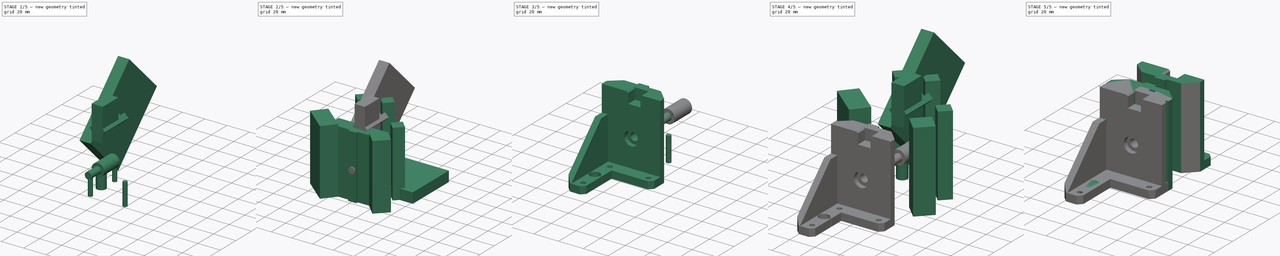
[diagram: build sequence overview — one tinted view per stage of 5, left to right]
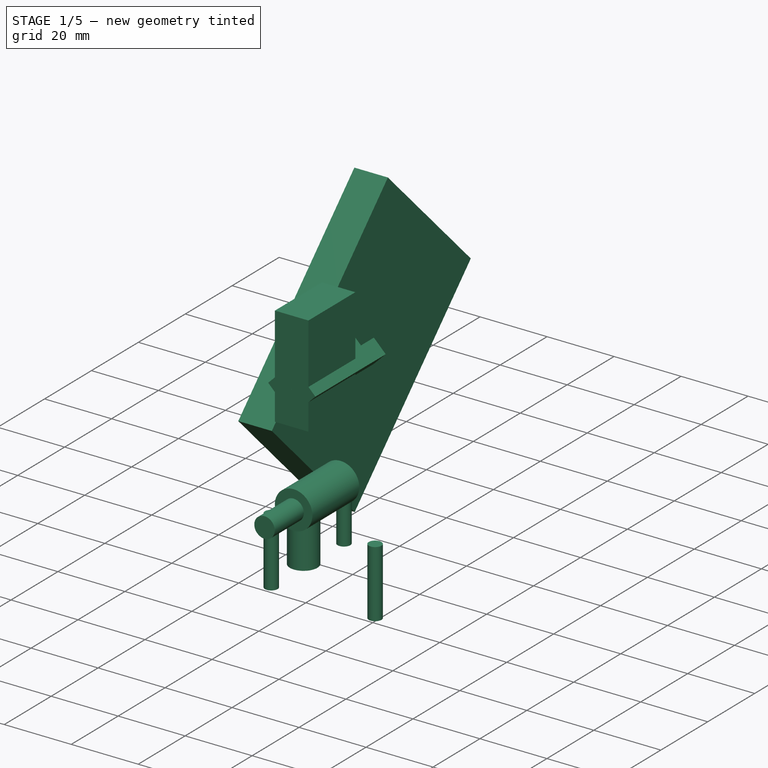
[diagram: stage 1 of 5 — iso view after this stage's code; geometry added in this stage tinted green]
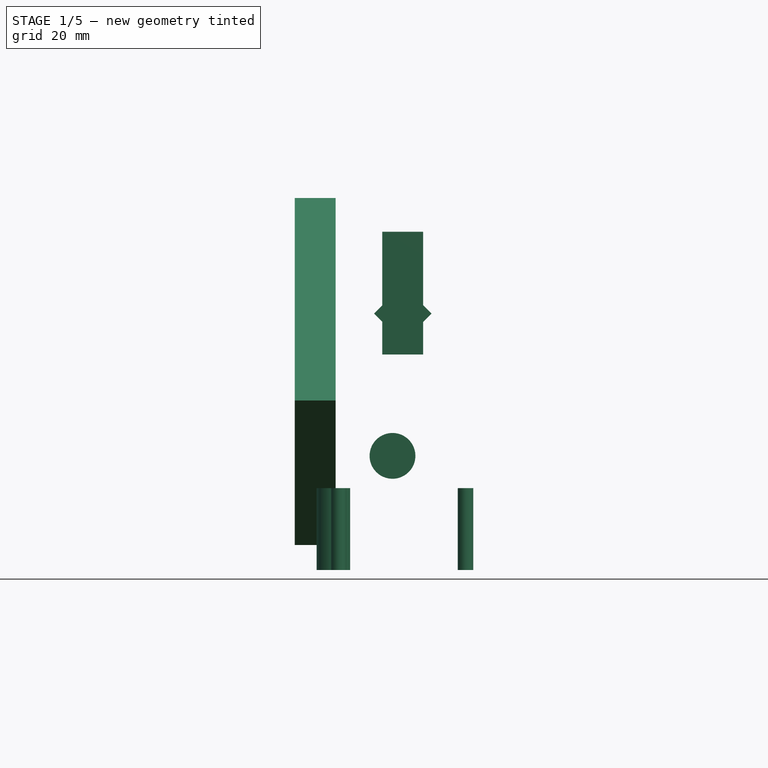
[diagram: stage 1 of 5 — front view after this stage's code; geometry added in this stage tinted green]
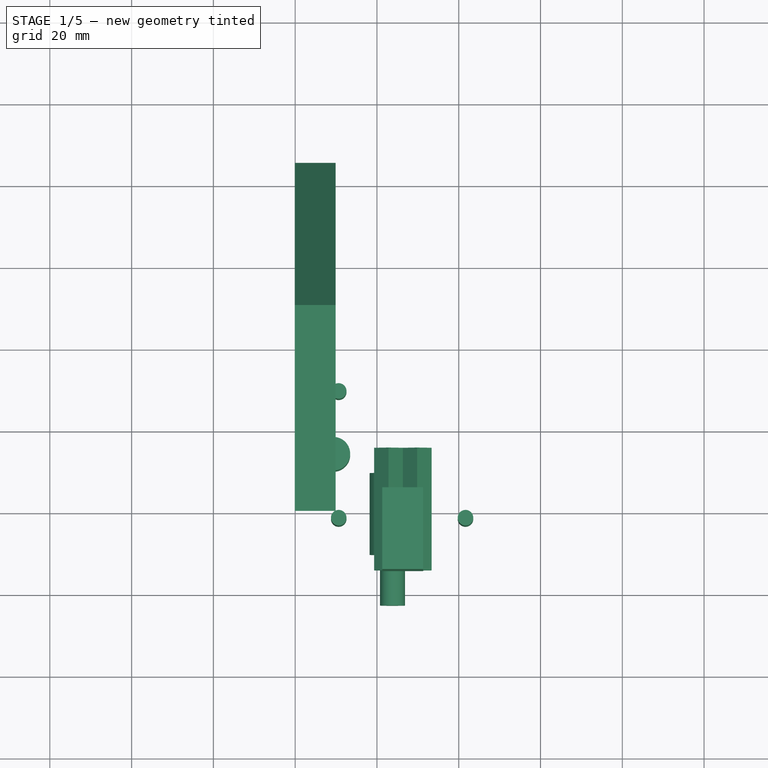
[diagram: stage 1 of 5 — top view after this stage's code; geometry added in this stage tinted green]
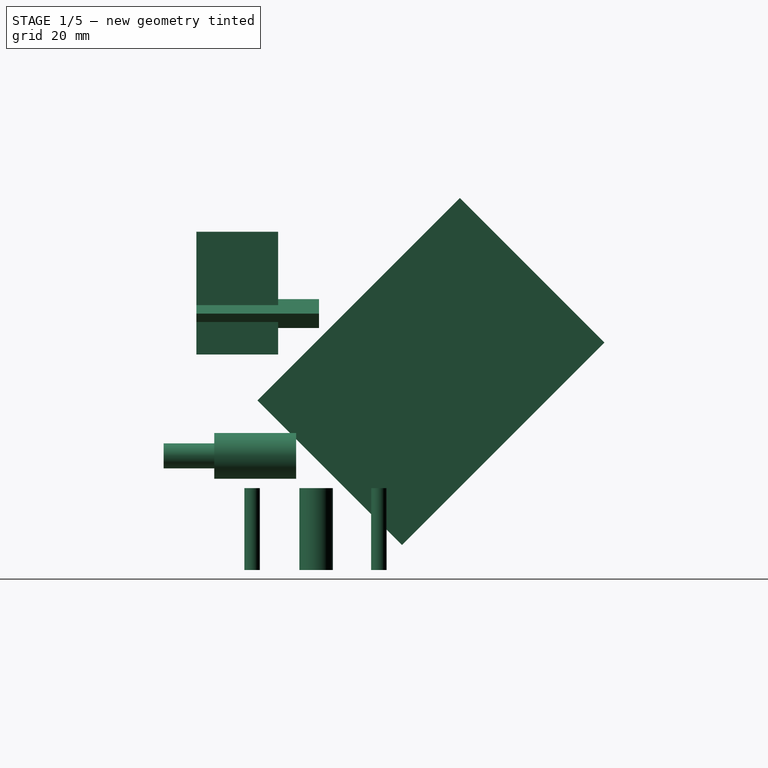
[diagram: stage 1 of 5 — right view after this stage's code; geometry added in this stage tinted green]
FCSTD DOCUMENT  (FreeCAD 0.19R)
Label: z-bottom
License: All rights reserved
LicenseURL: http://en.wikipedia.org/wiki/All_rights_reserved
objects: Part::Box×30, Part::Cylinder×12, Part::MultiFuse×8, Part::Fuse×3, Part::Cut×2, Part::Mirroring×2, PartDesign::FeatureBase×1, Sketcher::SketchObject×1, PartDesign::Pocket×1, PartDesign::Chamfer×1, PartDesign::Body×1
note: 64 computed .brp shape members not serialized (recipe doc carries the construction recipe); baked Part::Feature solids carry a one-line shape summary decoded from their .brp

FEATURE [Part::Box] cube011
  AttacherType = Attacher::AttachEngine3D
  Height = 50
  Length = 10
  Placement = pos=(-0.1,55.3,6) rot=(1,0,0;0.785398rad)
  Width = 70
FEATURE [Part::Box] cube012
  AttacherType = Attacher::AttachEngine3D
  Height = 30
  Length = 10
  Placement = pos=(21.3,5,52.6) rot=(0,0,1;0rad)
  Width = 20
FEATURE [Part::Box] cube013
  AttacherType = Attacher::AttachEngine3D
  Height = 5
  Length = 5
  Placement = pos=(26.3,5,62.6) rot=(0,1,0;0.785398rad)
  Width = 30
FEATURE [Part::Box] cube014
  AttacherType = Attacher::AttachEngine3D
  Height = 5
  Length = 5
  Placement = pos=(19.3,5,62.6) rot=(0,1,0;0.785398rad)
  Width = 30
FEATURE [Part::Cylinder] cylinder
  Angle = 360
  AttacherType = Attacher::AttachEngine3D
  Height = 20
  Placement = pos=(9.35,34.3,-0.1) rot=(0,0,1;0rad)
  Radius = 4.1
FEATURE [Part::Cylinder] cylinder001
  Angle = 360
  AttacherType = Attacher::AttachEngine3D
  Height = 20
  Radius = 1.9
FEATURE [Part::Cylinder] cylinder002
  Angle = 360
  AttacherType = Attacher::AttachEngine3D
  Height = 20
  Placement = pos=(31,0,0) rot=(0,0,1;0rad)
  Radius = 1.9
FEATURE [Part::Cylinder] cylinder003
  Angle = 360
  AttacherType = Attacher::AttachEngine3D
  Height = 20
  Placement = pos=(0,31,0) rot=(0,0,1;0rad)
  Radius = 1.9
FEATURE [Part::MultiFuse] Matrix_Union
  Placement = pos=(10.65,18.65,-0.1) rot=(0,0,1;0rad)
  Shapes = -> [cylinder001,cylinder002,cylinder003]
FEATURE [Part::Cylinder] cylinder004
  Angle = 360
  AttacherType = Attacher::AttachEngine3D
  Height = 20
  Placement = pos=(23.8,9.4,27.8) rot=(-1,0,0;1.5708rad)
  Radius = 5.6
FEATURE [Part::Cylinder] cylinder005
  Angle = 360
  AttacherType = Attacher::AttachEngine3D
  Height = 20
  Placement = pos=(23.8,-3,27.8) rot=(-1,0,0;1.5708rad)
  Radius = 3.05
FEATURE [Part::MultiFuse] Group002
  Shapes = -> [cylinder,Matrix_Union,cylinder004,cylinder005]
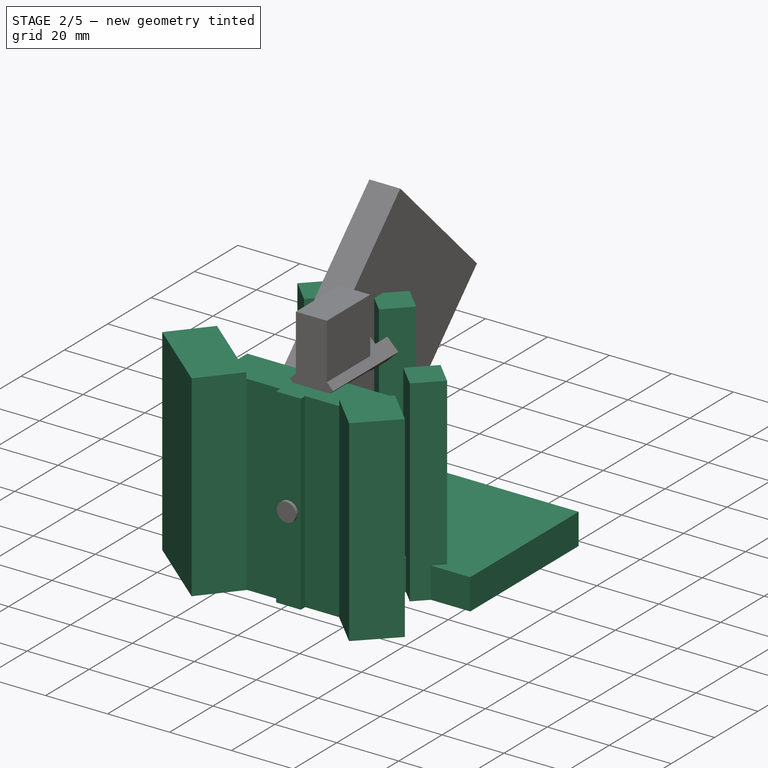
[diagram: stage 2 of 5 — iso view after this stage's code; geometry added in this stage tinted green]
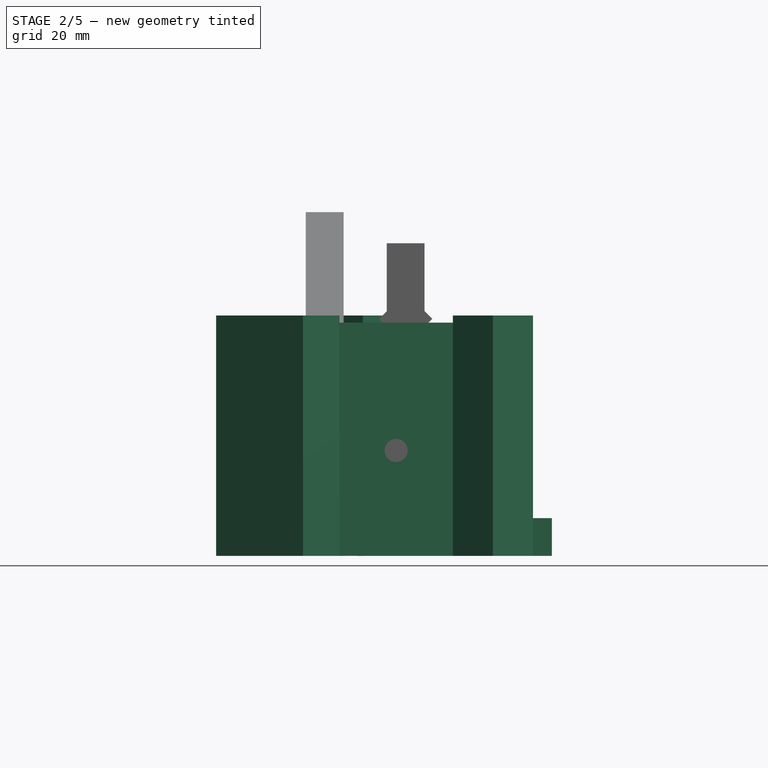
[diagram: stage 2 of 5 — front view after this stage's code; geometry added in this stage tinted green]
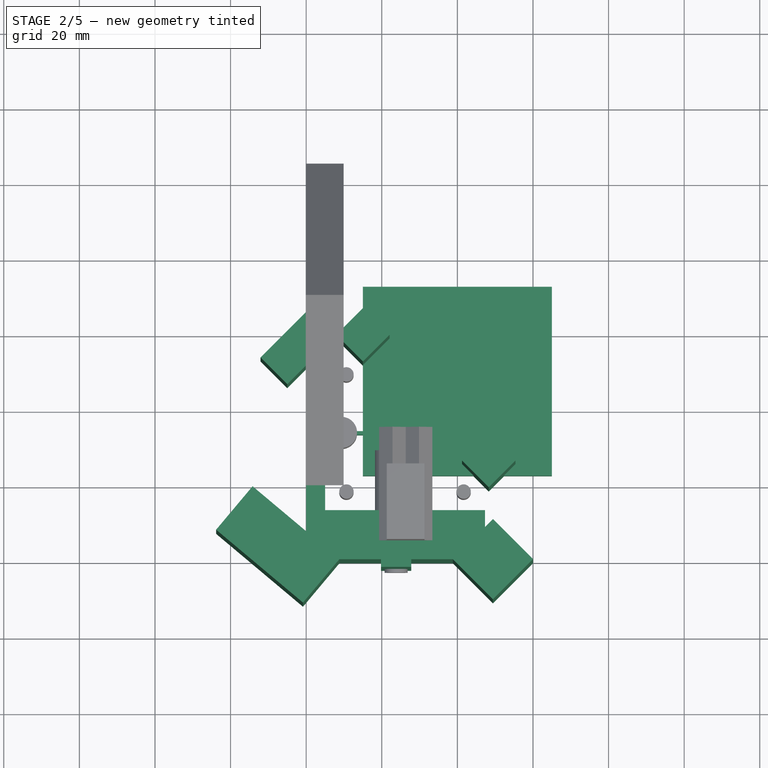
[diagram: stage 2 of 5 — top view after this stage's code; geometry added in this stage tinted green]
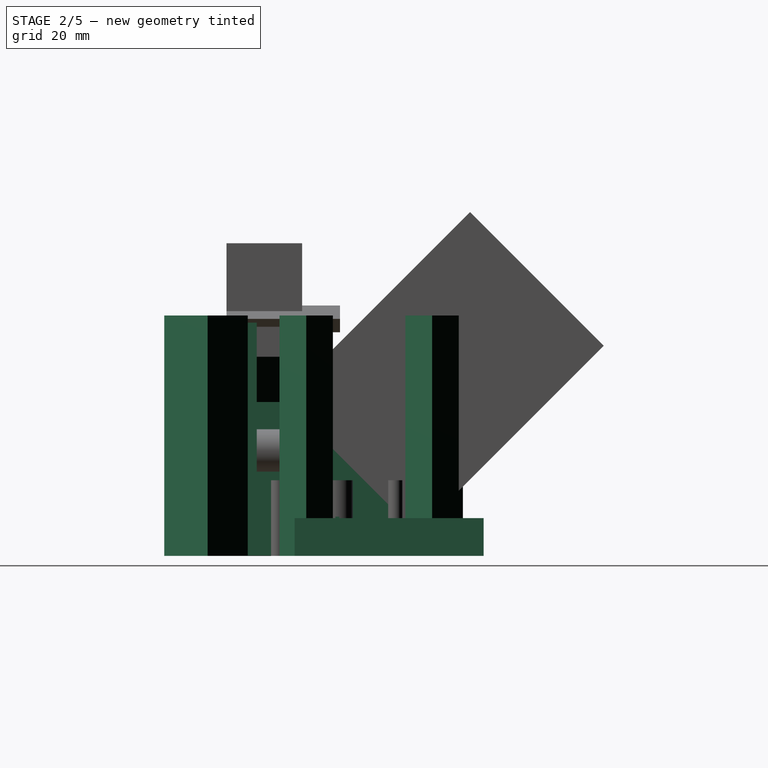
[diagram: stage 2 of 5 — right view after this stage's code; geometry added in this stage tinted green]
FEATURE [Part::Box] cube001
  AttacherType = Attacher::AttachEngine3D
  Height = 61.6
  Length = 47.3
  Width = 13
FEATURE [Part::Box] cube002
  AttacherType = Attacher::AttachEngine3D
  Height = 40.6
  Length = 5
  Width = 55.3
FEATURE [Part::Box] cube003
  AttacherType = Attacher::AttachEngine3D
  Height = 61.6
  Length = 8
  Placement = pos=(19.8,-2,0) rot=(0,0,1;0rad)
  Width = 3
FEATURE [Part::Box] cube004
  AttacherType = Attacher::AttachEngine3D
  Height = 10
  Length = 50
  Placement = pos=(15,23,-0.1) rot=(0,0,1;0rad)
  Width = 50
FEATURE [Part::Box] cube005
  AttacherType = Attacher::AttachEngine3D
  Height = 10
  Length = 10
  Placement = pos=(7.5,33.8,0.3) rot=(0,0,1;0rad)
  Width = 1
FEATURE [Part::Box] cube006
  AttacherType = Attacher::AttachEngine3D
  Height = 63.6
  Length = 30
  Placement = pos=(8.8,0,-0.1) rot=(0,0,1;2.44346rad)
  Width = 15
FEATURE [Part::Box] cube007
  AttacherType = Attacher::AttachEngine3D
  Height = 63.6
  Length = 15
  Placement = pos=(38.8,0,-0.1) rot=(0,0,-1;0.785398rad)
  Width = 15
FEATURE [Part::Box] cube008
  AttacherType = Attacher::AttachEngine3D
  Height = 63.6
  Length = 10
  Placement = pos=(48.3,19,-0.1) rot=(0,0,1;0.785398rad)
  Width = 10
FEATURE [Part::Box] cube009
  AttacherType = Attacher::AttachEngine3D
  Height = 63.6
  Length = 10
  Placement = pos=(15,52.3,-0.1) rot=(0,0,1;0.785398rad)
  Width = 10
FEATURE [Part::Box] cube010
  AttacherType = Attacher::AttachEngine3D
  Height = 63.6
  Length = 20
  Placement = pos=(-5,46.3,-0.1) rot=(0,0,1;0.785398rad)
  Width = 10
FEATURE [Part::MultiFuse] Group001
  Shapes = -> [cube004,cube005,cube006,cube007,cube008,cube009,cube010,cube011,cube012,cube013,cube014]
FEATURE [Part::Fuse] union
  Base = -> Group001
  Tool = -> Group002
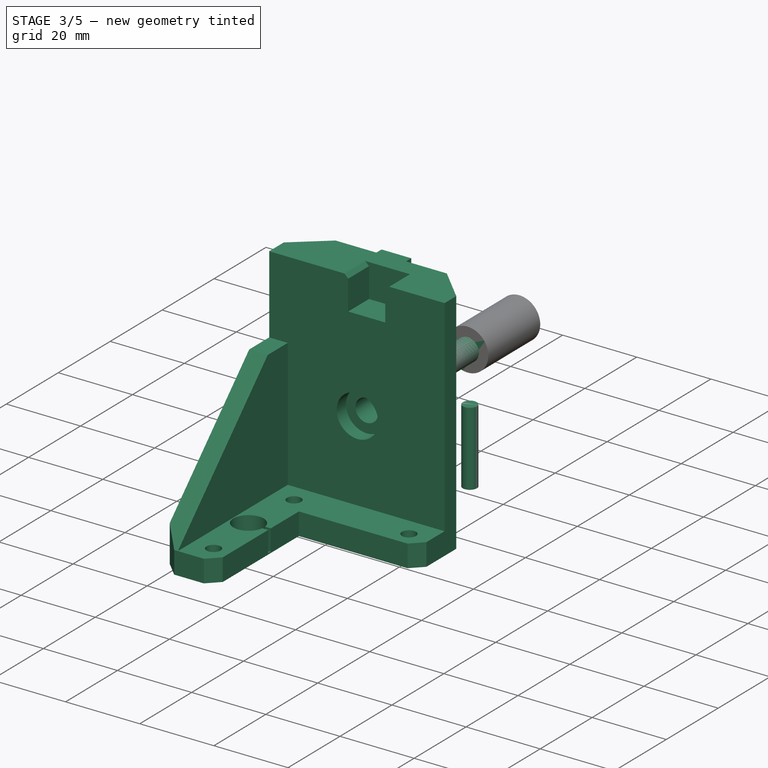
[diagram: stage 3 of 5 — iso view after this stage's code; geometry added in this stage tinted green]
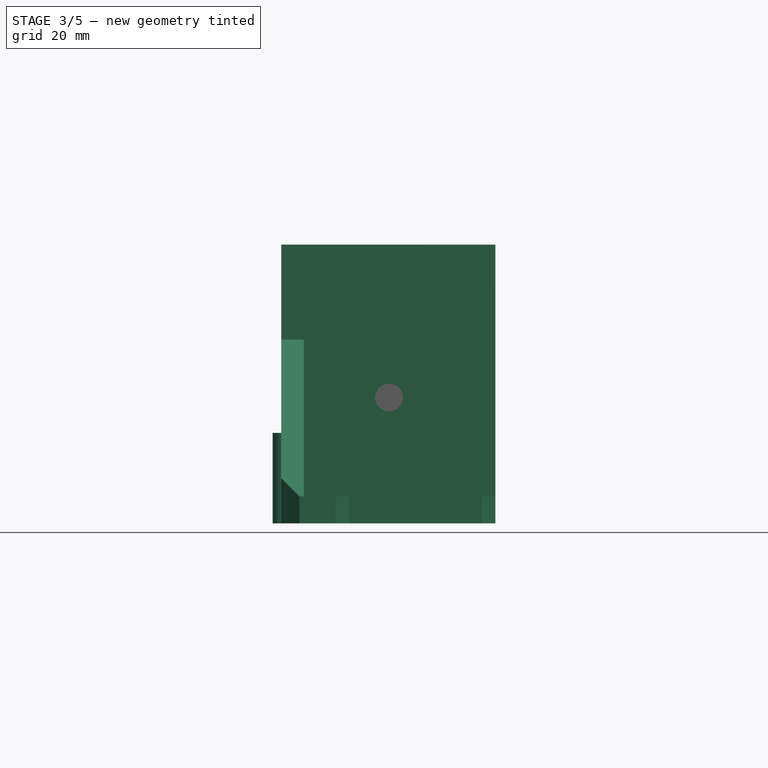
[diagram: stage 3 of 5 — front view after this stage's code; geometry added in this stage tinted green]
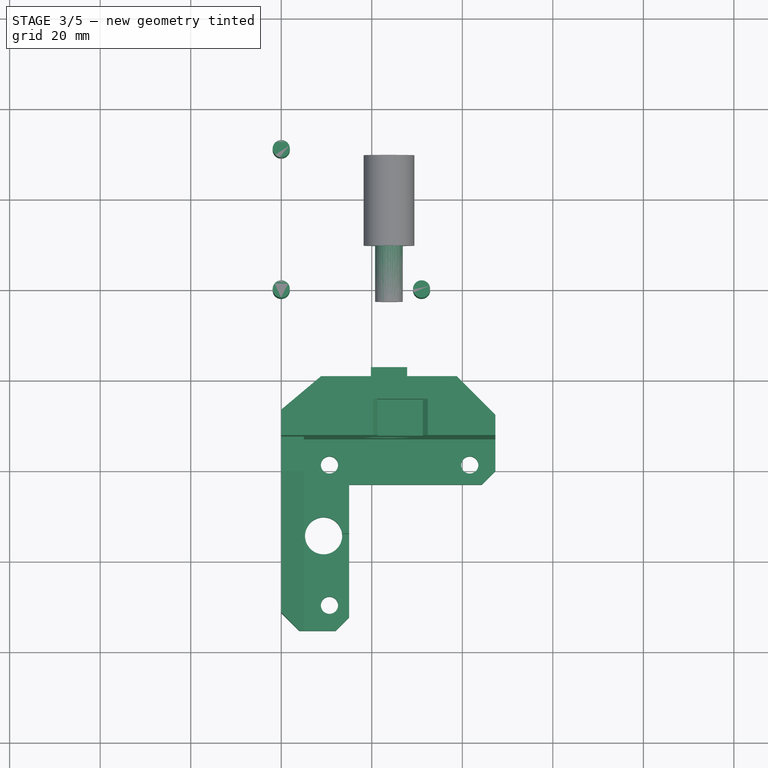
[diagram: stage 3 of 5 — top view after this stage's code; geometry added in this stage tinted green]
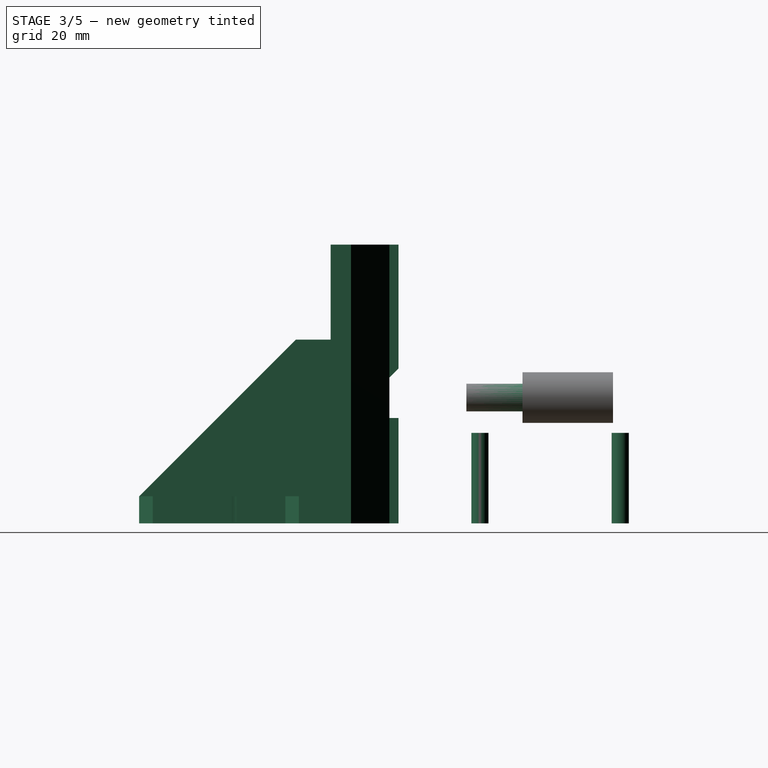
[diagram: stage 3 of 5 — right view after this stage's code; geometry added in this stage tinted green]
FEATURE [Part::Box] cube
  AttacherType = Attacher::AttachEngine3D
  Height = 6
  Length = 47.3
  Width = 55.3
FEATURE [Part::MultiFuse] Group
  Shapes = -> [cube,cube001,cube002,cube003]
FEATURE [Part::Cut] difference
  Base = -> Group
  Refine = true
  Tool = -> union
FEATURE [Part::Cylinder] cylinder007
  Angle = 360
  AttacherType = Attacher::AttachEngine3D
  Height = 20
  Radius = 1.9
FEATURE [Part::Cylinder] cylinder008
  Angle = 360
  AttacherType = Attacher::AttachEngine3D
  Height = 20
  Placement = pos=(31,0,0) rot=(0,0,1;0rad)
  Radius = 1.9
FEATURE [Part::Cylinder] cylinder009
  Angle = 360
  AttacherType = Attacher::AttachEngine3D
  Height = 20
  Placement = pos=(0,31,0) rot=(0,0,1;0rad)
  Radius = 1.9
FEATURE [Part::Cylinder] cylinder010
  Angle = 360
  AttacherType = Attacher::AttachEngine3D
  Height = 20
  Placement = pos=(23.8,9.4,27.8) rot=(-1,0,0;1.5708rad)
  Radius = 5.6
FEATURE [Part::Cylinder] cylinder011
  Angle = 360
  AttacherType = Attacher::AttachEngine3D
  Height = 20
  Placement = pos=(23.8,-3,27.8) rot=(-1,0,0;1.5708rad)
  Radius = 3.05
FEATURE [PartDesign::FeatureBase] BaseFeature
  BaseFeature = -> difference
FEATURE [Sketcher::SketchObject] Sketch
  ExternalGeometry = -> [BaseFeature]
  MapMode = 5
  Placement = pos=(0,-2,0) rot=(1,0,0;1.5708rad)
  Support = -> [BaseFeature]
  sketch-geometry (5):
    g0: LineSegment [constr] StartX=19.8 StartY=27.8 StartZ=0 EndX=27.8 EndY=27.8 EndZ=0
    g1: LineSegment StartX=19.8 StartY=32.3 StartZ=0 EndX=27.8 EndY=32.3 EndZ=0
    g2: LineSegment StartX=27.8 StartY=32.3 StartZ=0 EndX=27.8 EndY=23.3 EndZ=0
    g3: LineSegment StartX=27.8 StartY=23.3 StartZ=0 EndX=19.8 EndY=23.3 EndZ=0
    g4: LineSegment StartX=19.8 StartY=23.3 StartZ=0 EndX=19.8 EndY=32.3 EndZ=0
  constraints (15):
    c: PointOnObject(g0,g-5)
    c: PointOnObject(g0,g-4)
    c: Horizontal(g0)
    c: PointOnObject(g-3,g0)
    c: Coincident(g1,g2)
    c: Coincident(g2,g3)
    c: Coincident(g3,g4)
    c: Coincident(g4,g1)
    c: Horizontal(g1)
    c: Horizontal(g3)
    c: Vertical(g4)
    c: PointOnObject(g1,g-5)
    c: PointOnObject(g2,g-4)
    c: Symmetric(g1,g2,g0)
    c: DistanceY(g2,g2) = 9
FEATURE [PartDesign::Pocket] Pocket
  BaseFeature = -> BaseFeature
  Length = 2
  Length2 = 100
  Profile = -> Sketch
  Type = 0
FEATURE [PartDesign::Chamfer] Chamfer
  Angle = 45
  Base = -> Pocket [Edge99]
  BaseFeature = -> Pocket
  ChamferType = 0
  FlipDirection = false
  Size = 1.9
  Size2 = 1
  SupportTransform = false
FEATURE [PartDesign::Body] Body
  BaseFeature = -> difference
  Group = -> [BaseFeature,Sketch,Pocket,Chamfer]
  Origin = -> Origin
  Tip = -> Chamfer
FEATURE [Part::Mirroring] Part__Mirroring  label="Body (Mirror #2)"
  Base = (0,0,0)
  Normal = (0,1,0)
  Placement = pos=(0,-20,0) rot=(0,0,1;0rad)
  Source = -> Body
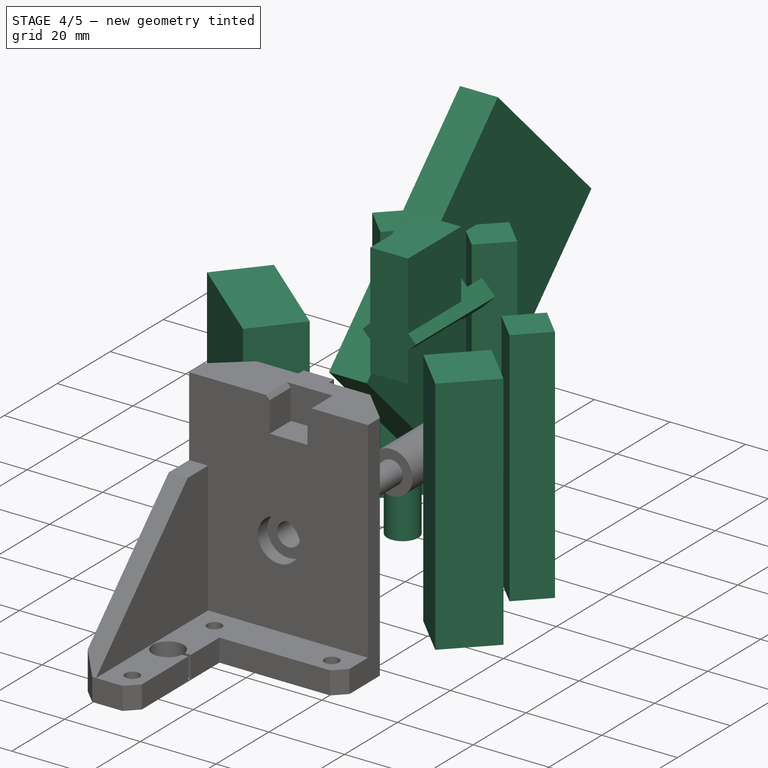
[diagram: stage 4 of 5 — iso view after this stage's code; geometry added in this stage tinted green]
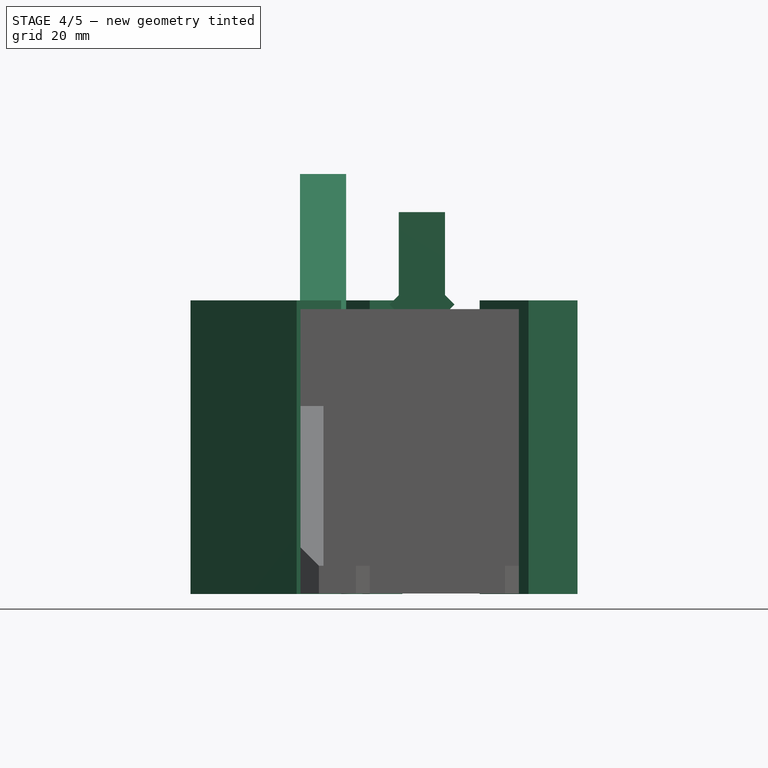
[diagram: stage 4 of 5 — front view after this stage's code; geometry added in this stage tinted green]
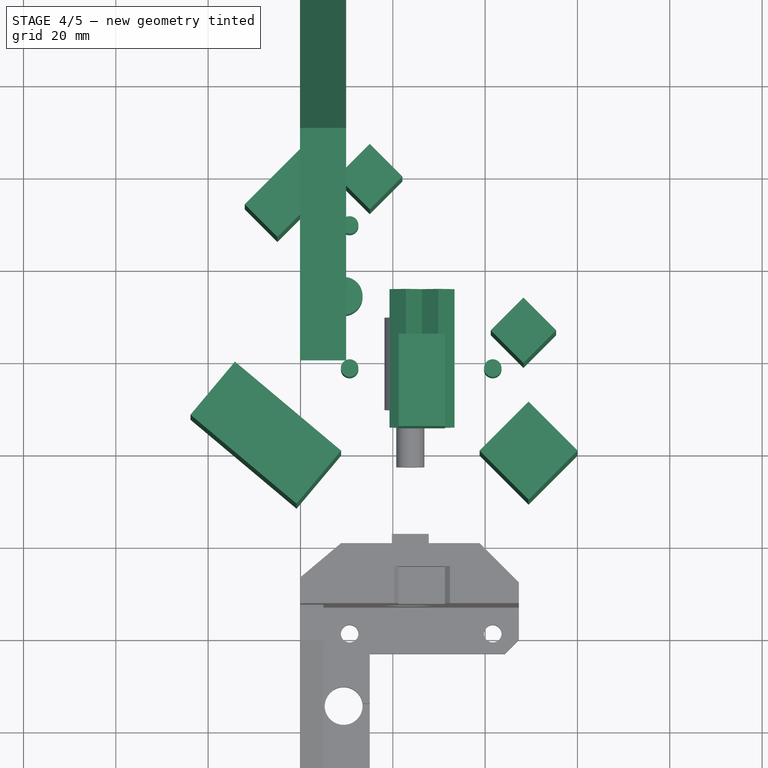
[diagram: stage 4 of 5 — top view after this stage's code; geometry added in this stage tinted green]
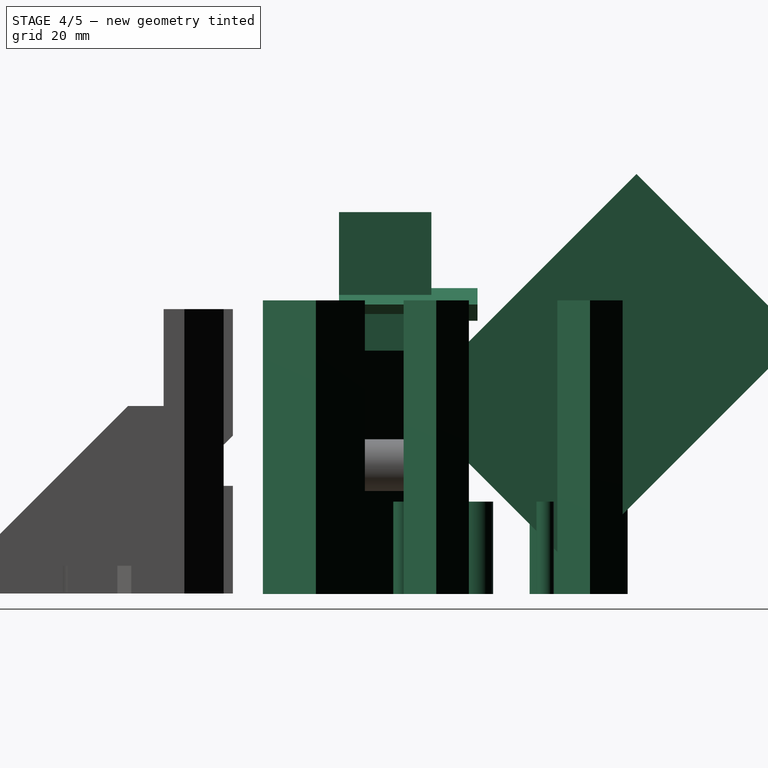
[diagram: stage 4 of 5 — right view after this stage's code; geometry added in this stage tinted green]
FEATURE [Part::Box] cube021
  AttacherType = Attacher::AttachEngine3D
  Height = 63.6
  Length = 30
  Placement = pos=(8.8,0,-0.1) rot=(0,0,1;2.44346rad)
  Width = 15
FEATURE [Part::Box] cube022
  AttacherType = Attacher::AttachEngine3D
  Height = 63.6
  Length = 15
  Placement = pos=(38.8,0,-0.1) rot=(0,0,-1;0.785398rad)
  Width = 15
FEATURE [Part::Box] cube023
  AttacherType = Attacher::AttachEngine3D
  Height = 63.6
  Length = 10
  Placement = pos=(48.3,19,-0.1) rot=(0,0,1;0.785398rad)
  Width = 10
FEATURE [Part::Box] cube024
  AttacherType = Attacher::AttachEngine3D
  Height = 63.6
  Length = 10
  Placement = pos=(15,52.3,-0.1) rot=(0,0,1;0.785398rad)
  Width = 10
FEATURE [Part::Box] cube025
  AttacherType = Attacher::AttachEngine3D
  Height = 63.6
  Length = 20
  Placement = pos=(-5,46.3,-0.1) rot=(0,0,1;0.785398rad)
  Width = 10
FEATURE [Part::Box] cube026
  AttacherType = Attacher::AttachEngine3D
  Height = 50
  Length = 10
  Placement = pos=(-0.1,55.3,6) rot=(1,0,0;0.785398rad)
  Width = 70
FEATURE [Part::Box] cube027
  AttacherType = Attacher::AttachEngine3D
  Height = 30
  Length = 10
  Placement = pos=(21.3,5,52.6) rot=(0,0,1;0rad)
  Width = 20
FEATURE [Part::Box] cube028
  AttacherType = Attacher::AttachEngine3D
  Height = 5
  Length = 5
  Placement = pos=(26.3,5,62.6) rot=(0,1,0;0.785398rad)
  Width = 30
FEATURE [Part::Box] cube029
  AttacherType = Attacher::AttachEngine3D
  Height = 5
  Length = 5
  Placement = pos=(19.3,5,62.6) rot=(0,1,0;0.785398rad)
  Width = 30
FEATURE [Part::Cylinder] cylinder006
  Angle = 360
  AttacherType = Attacher::AttachEngine3D
  Height = 20
  Placement = pos=(9.35,34.3,-0.1) rot=(0,0,1;0rad)
  Radius = 4.1
FEATURE [Part::MultiFuse] Matrix_Union001
  Placement = pos=(10.65,18.65,-0.1) rot=(0,0,1;0rad)
  Shapes = -> [cylinder007,cylinder008,cylinder009]
FEATURE [Part::MultiFuse] Group005
  Shapes = -> [cylinder006,Matrix_Union001,cylinder010,cylinder011]
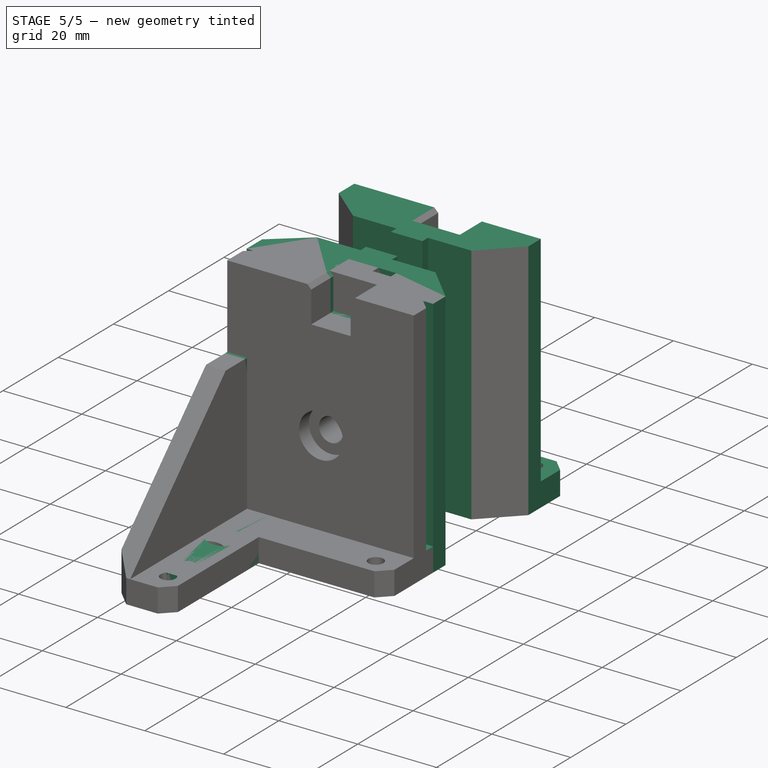
[diagram: stage 5 of 5 — iso view after this stage's code; geometry added in this stage tinted green]
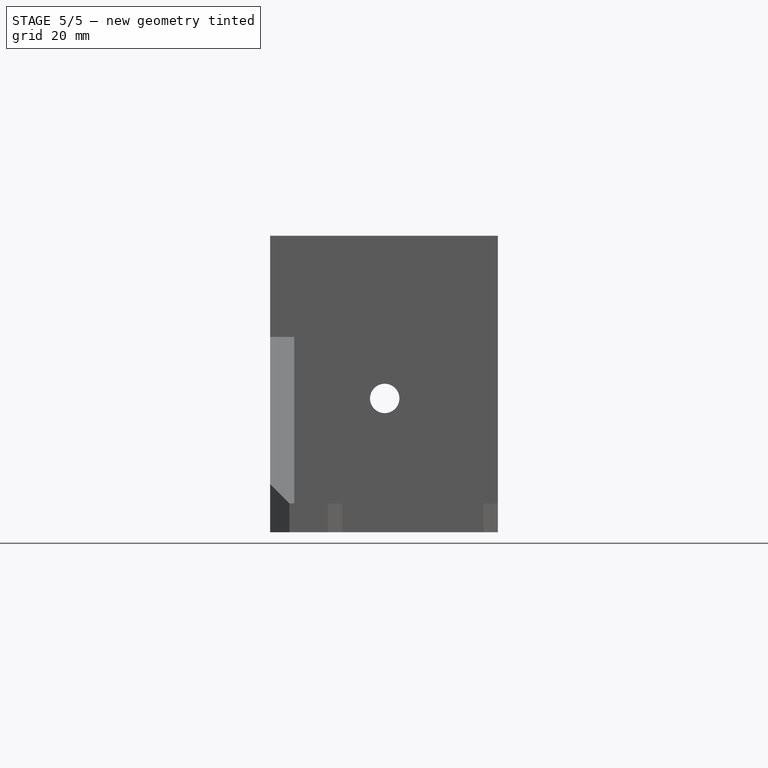
[diagram: stage 5 of 5 — front view after this stage's code; geometry added in this stage tinted green]
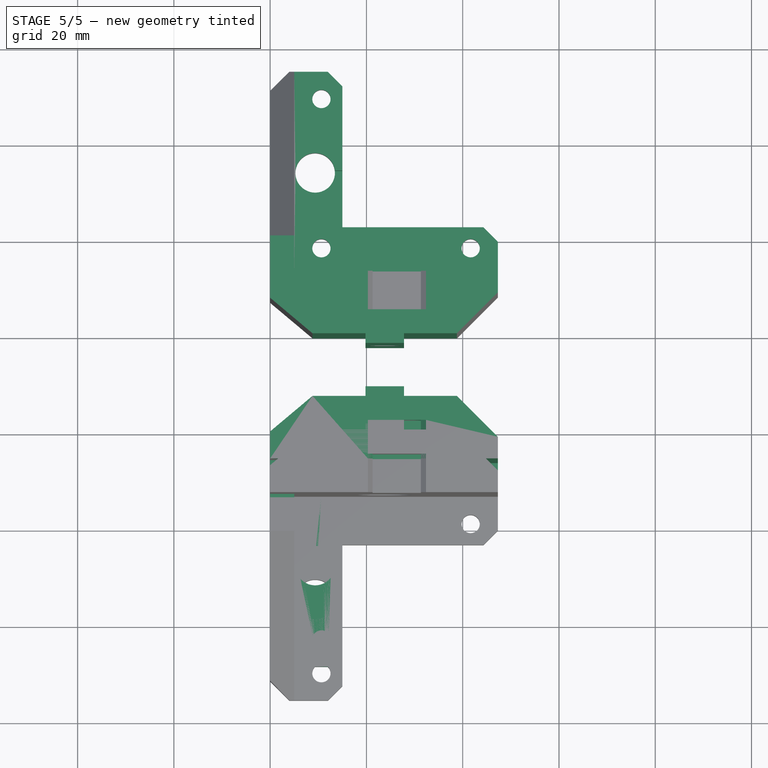
[diagram: stage 5 of 5 — top view after this stage's code; geometry added in this stage tinted green]
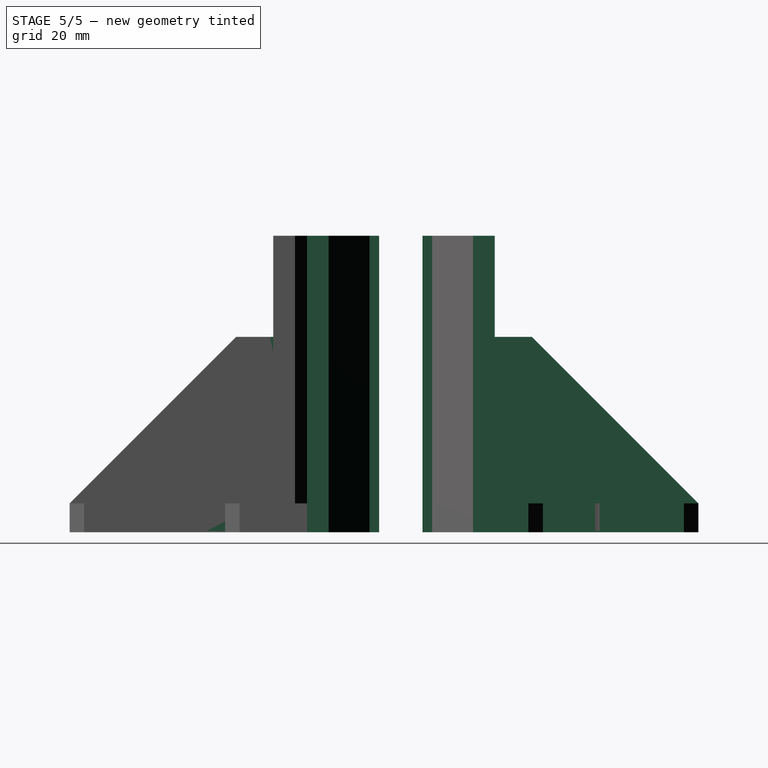
[diagram: stage 5 of 5 — right view after this stage's code; geometry added in this stage tinted green]
FEATURE [Part::Box] cube015
  AttacherType = Attacher::AttachEngine3D
  Height = 6
  Length = 47.3
  Width = 55.3
FEATURE [Part::Box] cube016
  AttacherType = Attacher::AttachEngine3D
  Height = 61.6
  Length = 47.3
  Width = 13
FEATURE [Part::Box] cube017
  AttacherType = Attacher::AttachEngine3D
  Height = 40.6
  Length = 5
  Width = 55.3
FEATURE [Part::Box] cube018
  AttacherType = Attacher::AttachEngine3D
  Height = 61.6
  Length = 8
  Placement = pos=(19.8,-2,0) rot=(0,0,1;0rad)
  Width = 3
FEATURE [Part::MultiFuse] Group003
  Shapes = -> [cube015,cube016,cube017,cube018]
FEATURE [Part::Box] cube019
  AttacherType = Attacher::AttachEngine3D
  Height = 10
  Length = 50
  Placement = pos=(15,23,-0.1) rot=(0,0,1;0rad)
  Width = 50
FEATURE [Part::Box] cube020
  AttacherType = Attacher::AttachEngine3D
  Height = 10
  Length = 10
  Placement = pos=(7.5,33.8,0.3) rot=(0,0,1;0rad)
  Width = 1
FEATURE [Part::MultiFuse] Group004
  Shapes = -> [cube019,cube020,cube021,cube022,cube023,cube024,cube025,cube026,cube027,cube028,cube029]
FEATURE [Part::Fuse] union001
  Base = -> Group004
  Tool = -> Group005
FEATURE [Part::Cut] difference001
  Base = -> Group003
  Tool = -> union001
FEATURE [Part::Mirroring] mirr_difference001  label="mirrored difference001"
  Base = (0,0,0)
  Normal = (0,1,0)
  Placement = pos=(0,-13,0) rot=(0,0,1;0rad)
  Source = -> difference001
FEATURE [Part::Fuse] Group006
  Base = -> difference
  Tool = -> mirr_difference001
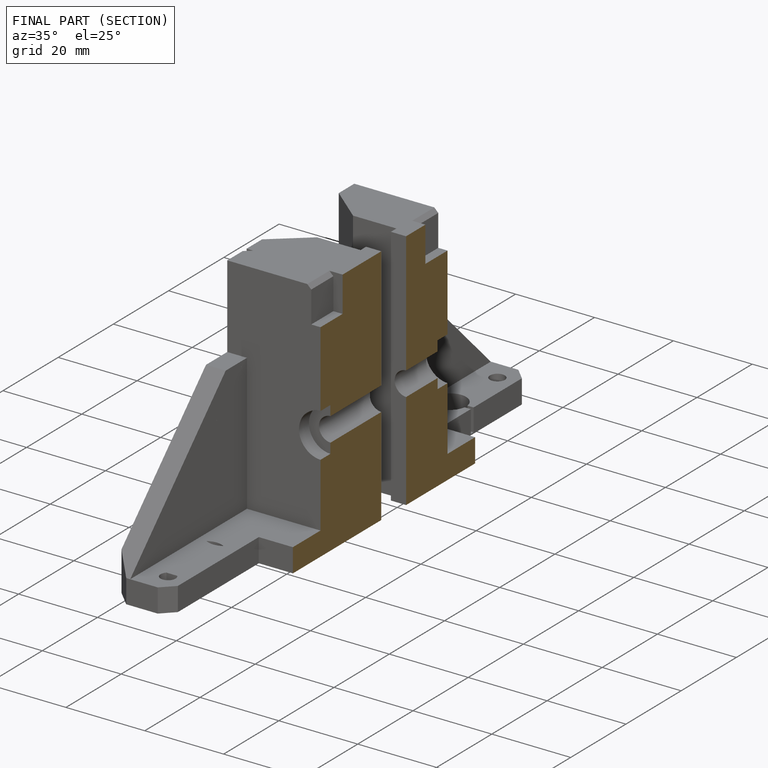
[diagram: finished part — half-section view (interior)]
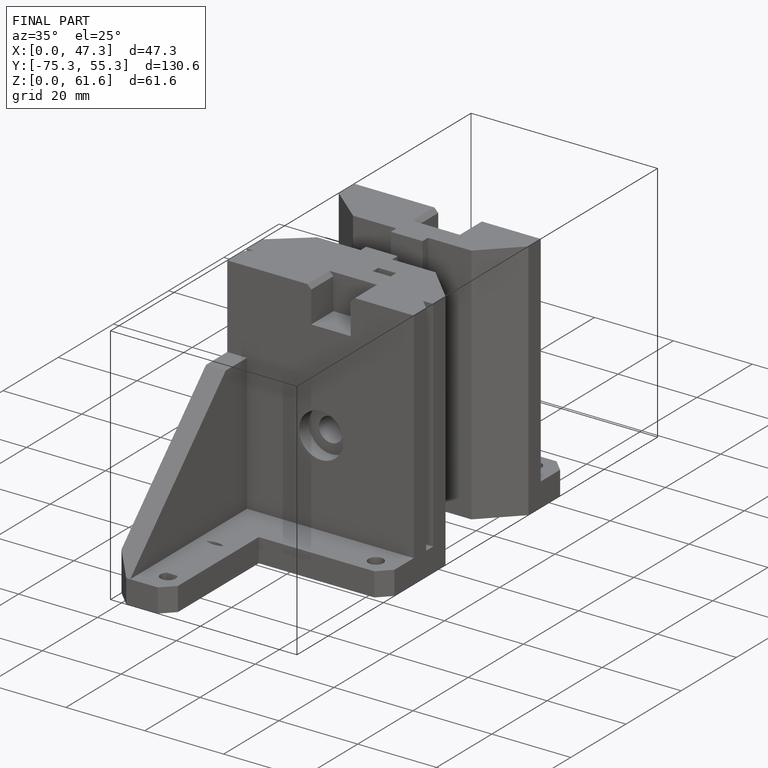
[diagram: finished part — iso view with bounding-box wireframe]
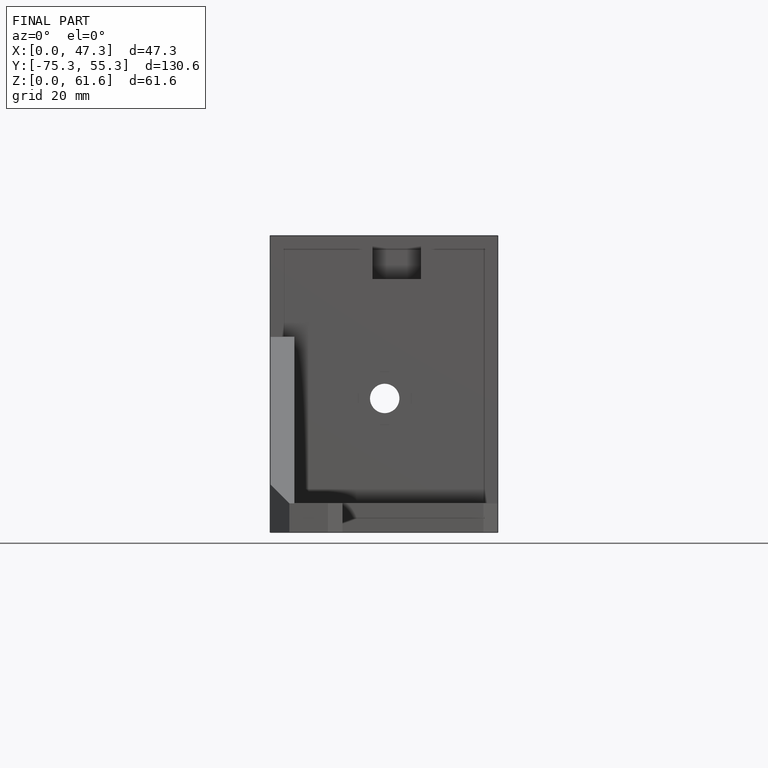
[diagram: finished part — front view with bounding-box wireframe]
